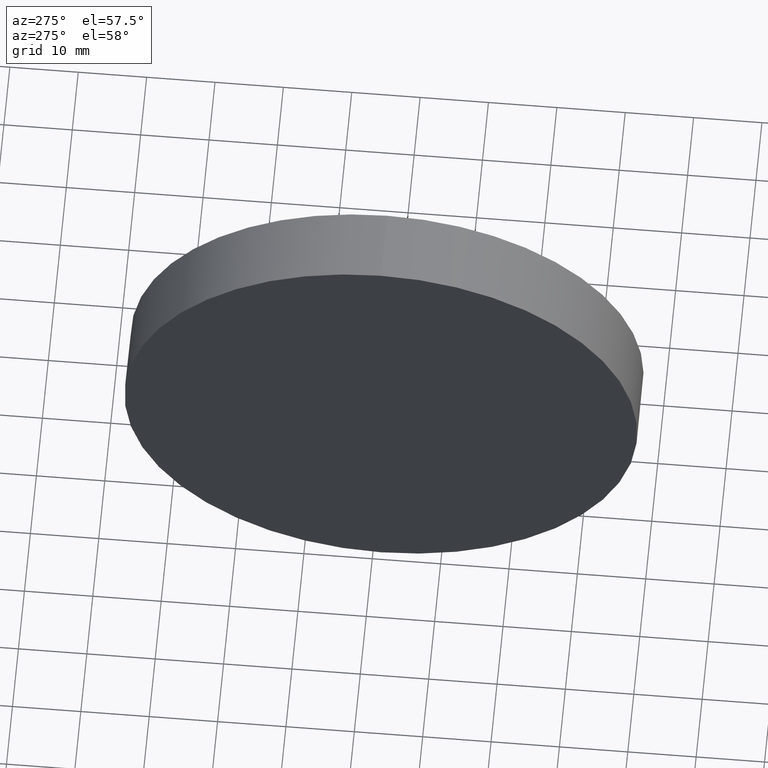
[diagram: clean part render]
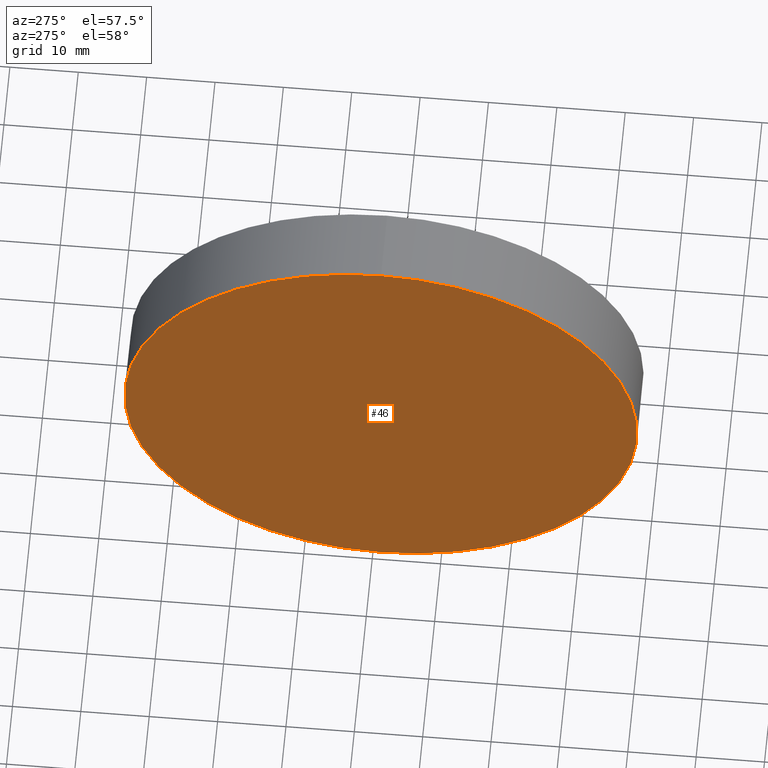
[diagram: same view with one face highlighted and labeled with its STEP entity id]
A machine part, auxiliary view. The second image highlights one B-rep face of the part: STEP entity #46.
In plain terms, the highlighted planar face has unit normal (1, 0, 0).
Its self-contained STEP definition (entity closure, byte-faithful):
#13 = CARTESIAN_POINT ( 'NONE',  ( 230.1996119052661200, 138.7560422467448700, -37.50000000000000700 ) ) ;
#36 = EDGE_CURVE ( 'NONE', #127, #68, #186, .T. ) ;
#43 = ORIENTED_EDGE ( 'NONE', *, *, #48, .T. ) ;
#44 = CARTESIAN_POINT ( 'NONE',  ( 230.1996119052661200, 138.7560422467448700, 0.0000000000000000000 ) ) ;
#45 = DIRECTION ( 'NONE',  ( -1.000000000000000000, -0.0000000000000000000, -0.0000000000000000000 ) ) ;
#46 = ADVANCED_FACE ( 'NONE', ( #168 ), #150, .F. ) ;
#47 = CARTESIAN_POINT ( 'NONE',  ( 230.1996119052661200, 138.7560422467448700, 37.50000000000000700 ) ) ;
#48 = EDGE_CURVE ( 'NONE', #68, #127, #137, .T. ) ;
#60 = DIRECTION ( 'NONE',  ( 0.0000000000000000000, 0.0000000000000000000, -1.000000000000000000 ) ) ;
#67 = EDGE_LOOP ( 'NONE', ( #43, #112 ) ) ;
#68 = VERTEX_POINT ( 'NONE', #47 ) ;
#105 = AXIS2_PLACEMENT_3D ( 'NONE', #44, #45, #161 ) ;
#109 = DIRECTION ( 'NONE',  ( -1.000000000000000000, -0.0000000000000000000, -0.0000000000000000000 ) ) ;
#112 = ORIENTED_EDGE ( 'NONE', *, *, #36, .T. ) ;
#116 = AXIS2_PLACEMENT_3D ( 'NONE', #152, #174, #60 ) ;
#120 = AXIS2_PLACEMENT_3D ( 'NONE', #154, #109, #160 ) ;
#127 = VERTEX_POINT ( 'NONE', #13 ) ;
#137 = CIRCLE ( 'NONE', #120, 37.50000000000000700 ) ;
#150 = PLANE ( 'NONE',  #116 ) ;
#152 = CARTESIAN_POINT ( 'NONE',  ( 230.1996119052661200, 138.7560422467448700, 0.0000000000000000000 ) ) ;
#154 = CARTESIAN_POINT ( 'NONE',  ( 230.1996119052661200, 138.7560422467448700, 0.0000000000000000000 ) ) ;
#160 = DIRECTION ( 'NONE',  ( 0.0000000000000000000, 0.0000000000000000000, 1.000000000000000000 ) ) ;
#161 = DIRECTION ( 'NONE',  ( 0.0000000000000000000, 0.0000000000000000000, 1.000000000000000000 ) ) ;
#168 = FACE_OUTER_BOUND ( 'NONE', #67, .T. ) ;
#174 = DIRECTION ( 'NONE',  ( 1.000000000000000000, 0.0000000000000000000, 0.0000000000000000000 ) ) ;
#186 = CIRCLE ( 'NONE', #105, 37.50000000000000700 ) ;